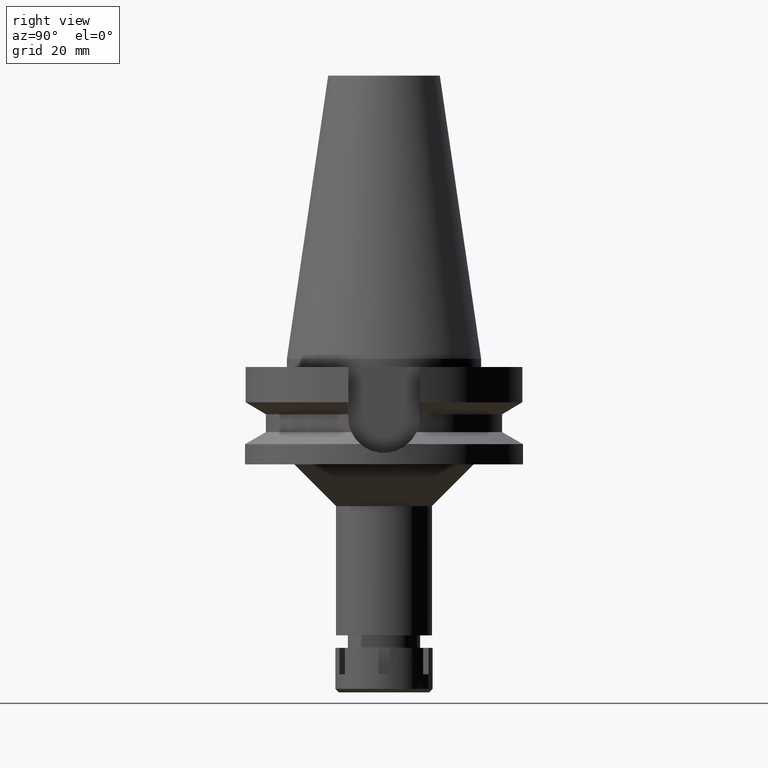
[diagram: clean part render]
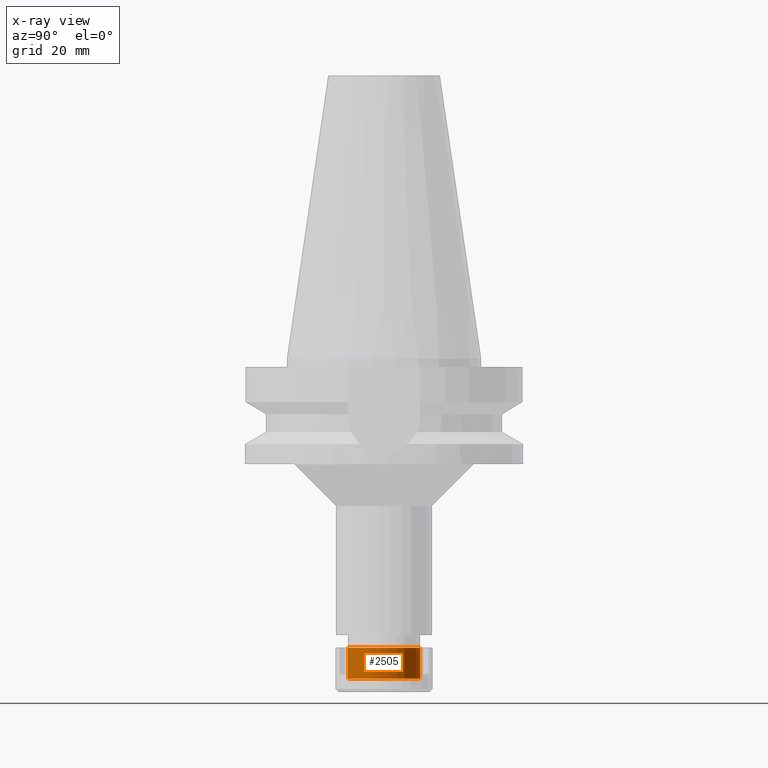
[diagram: x-ray — body ghosted, one internal face saturated and labeled with its STEP entity id]
A machine part, right view, then the same camera in x-ray: the body is ghosted and one INTERNAL B-rep face — a face not visible from any outside direction — is saturated and labeled: STEP entity #2505.
In plain terms, the highlighted cylindrical surface (edge-blend (fillet) strip) has radius 13 mm, axis along (0, 0, -1).
Its self-contained STEP definition (entity closure, byte-faithful):
#83 = EDGE_LOOP ( 'NONE', ( #134, #1210, #3538, #1751 ) ) ;
#134 = ORIENTED_EDGE ( 'NONE', *, *, #1687, .T. ) ;
#262 = DIRECTION ( 'NONE',  ( 0.0000000000000000000, 0.0000000000000000000, 1.000000000000000000 ) ) ;
#385 = CARTESIAN_POINT ( 'NONE',  ( 0.0000000000000000000, -13.00000000000000000, -11.00000000000000000 ) ) ;
#464 = DIRECTION ( 'NONE',  ( 0.0000000000000000000, 0.0000000000000000000, 1.000000000000000000 ) ) ;
#580 = CARTESIAN_POINT ( 'NONE',  ( 0.0000000000000000000, 13.00000000000000000, -11.00000000000000000 ) ) ;
#641 = DIRECTION ( 'NONE',  ( 0.0000000000000000000, 0.0000000000000000000, 1.000000000000000000 ) ) ;
#662 = EDGE_CURVE ( 'NONE', #1788, #929, #795, .T. ) ;
#743 = AXIS2_PLACEMENT_3D ( 'NONE', #1845, #464, #1587 ) ;
#795 = LINE ( 'NONE', #3136, #1951 ) ;
#929 = VERTEX_POINT ( 'NONE', #3153 ) ;
#942 = CARTESIAN_POINT ( 'NONE',  ( 0.0000000000000000000, 0.0000000000000000000, -11.00000000000000000 ) ) ;
#1144 = EDGE_CURVE ( 'NONE', #2392, #929, #3000, .T. ) ;
#1210 = ORIENTED_EDGE ( 'NONE', *, *, #1380, .T. ) ;
#1380 = EDGE_CURVE ( 'NONE', #2376, #2392, #2319, .T. ) ;
#1587 = DIRECTION ( 'NONE',  ( 0.0000000000000000000, -1.000000000000000000, 0.0000000000000000000 ) ) ;
#1606 = CYLINDRICAL_SURFACE ( 'NONE', #2190, 13.00000000000000000 ) ;
#1622 = DIRECTION ( 'NONE',  ( 0.0000000000000000000, 0.0000000000000000000, -1.000000000000000000 ) ) ;
#1645 = DIRECTION ( 'NONE',  ( 0.0000000000000000000, -1.000000000000000000, 0.0000000000000000000 ) ) ;
#1685 = FACE_OUTER_BOUND ( 'NONE', #83, .T. ) ;
#1687 = EDGE_CURVE ( 'NONE', #1788, #2376, #2292, .T. ) ;
#1751 = ORIENTED_EDGE ( 'NONE', *, *, #662, .F. ) ;
#1788 = VERTEX_POINT ( 'NONE', #580 ) ;
#1845 = CARTESIAN_POINT ( 'NONE',  ( 0.0000000000000000000, 0.0000000000000000000, 0.0000000000000000000 ) ) ;
#1951 = VECTOR ( 'NONE', #262, 1000.000000000000000 ) ;
#2190 = AXIS2_PLACEMENT_3D ( 'NONE', #2741, #1622, #1645 ) ;
#2276 = DIRECTION ( 'NONE',  ( 0.0000000000000000000, 0.0000000000000000000, -1.000000000000000000 ) ) ;
#2292 = CIRCLE ( 'NONE', #2765, 13.00000000000000000 ) ;
#2319 = LINE ( 'NONE', #385, #3062 ) ;
#2376 = VERTEX_POINT ( 'NONE', #3638 ) ;
#2392 = VERTEX_POINT ( 'NONE', #3655 ) ;
#2505 = ADVANCED_FACE ( 'NONE', ( #1685 ), #1606, .F. ) ;
#2741 = CARTESIAN_POINT ( 'NONE',  ( 0.0000000000000000000, 0.0000000000000000000, 0.0000000000000000000 ) ) ;
#2765 = AXIS2_PLACEMENT_3D ( 'NONE', #942, #2276, #2955 ) ;
#2955 = DIRECTION ( 'NONE',  ( 0.0000000000000000000, 1.000000000000000000, 0.0000000000000000000 ) ) ;
#3000 = CIRCLE ( 'NONE', #743, 13.00000000000000000 ) ;
#3062 = VECTOR ( 'NONE', #641, 1000.000000000000000 ) ;
#3136 = CARTESIAN_POINT ( 'NONE',  ( 0.0000000000000000000, 13.00000000000000000, -11.00000000000000000 ) ) ;
#3153 = CARTESIAN_POINT ( 'NONE',  ( 0.0000000000000000000, 13.00000000000000000, 0.0000000000000000000 ) ) ;
#3538 = ORIENTED_EDGE ( 'NONE', *, *, #1144, .T. ) ;
#3638 = CARTESIAN_POINT ( 'NONE',  ( 0.0000000000000000000, -13.00000000000000000, -11.00000000000000000 ) ) ;
#3655 = CARTESIAN_POINT ( 'NONE',  ( 0.0000000000000000000, -13.00000000000000000, 0.0000000000000000000 ) ) ;